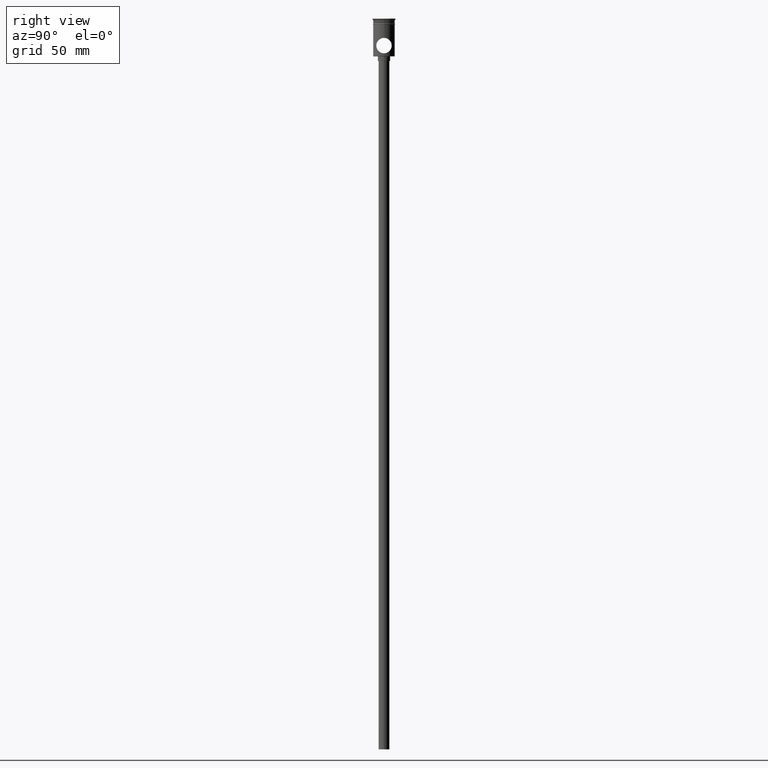
[diagram: clean part render]
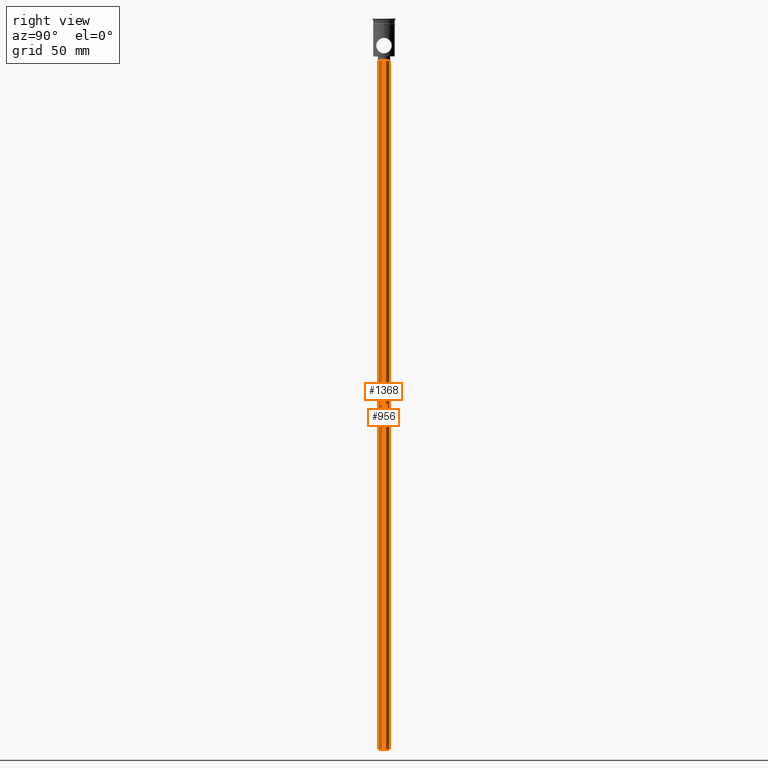
[diagram: same view with one multi-face feature highlighted, each face labeled with its STEP entity id]
A machine part, right view. The highlighted faces form ONE feature: a constant-radius fillet chain: 2 tangent blend faces with common blend radius 3.5 mm. The faces share edges in the B-rep.
Their STEP definitions:
[1] entity #956 (Cylinder):
#58 = CARTESIAN_POINT ( 'NONE',  ( 3.500000000000000444, 0.000000000000000000, -27.50000000000000000 ) ) ;
#132 = DIRECTION ( 'NONE',  ( -0.000000000000000000, -0.000000000000000000, 1.000000000000000000 ) ) ;
#158 = CIRCLE ( 'NONE', #185, 3.500000000000000444 ) ;
#185 = AXIS2_PLACEMENT_3D ( 'NONE', #574, #580, #470 ) ;
#257 = ORIENTED_EDGE ( 'NONE', *, *, #1234, .T. ) ;
#338 = VERTEX_POINT ( 'NONE', #1375 ) ;
#358 = CARTESIAN_POINT ( 'NONE',  ( 3.500000000000000444, 0.000000000000000000, -474.5000000000000568 ) ) ;
#398 = VECTOR ( 'NONE', #1424, 1000.000000000000000 ) ;
#431 = DIRECTION ( 'NONE',  ( -1.000000000000000000, 0.000000000000000000, 0.000000000000000000 ) ) ;
#453 = VERTEX_POINT ( 'NONE', #887 ) ;
#458 = CYLINDRICAL_SURFACE ( 'NONE', #1389, 3.500000000000000444 ) ;
#470 = DIRECTION ( 'NONE',  ( -1.000000000000000000, 0.000000000000000000, 0.000000000000000000 ) ) ;
#473 = DIRECTION ( 'NONE',  ( 1.000000000000000000, 0.000000000000000000, 0.000000000000000000 ) ) ;
#500 = CIRCLE ( 'NONE', #1087, 3.500000000000000444 ) ;
#502 = EDGE_CURVE ( 'NONE', #1165, #1396, #597, .T. ) ;
#574 = CARTESIAN_POINT ( 'NONE',  ( 0.000000000000000000, 0.000000000000000000, -27.50000000000000000 ) ) ;
#580 = DIRECTION ( 'NONE',  ( 0.000000000000000000, 0.000000000000000000, -1.000000000000000000 ) ) ;
#582 = CARTESIAN_POINT ( 'NONE',  ( 3.500000000000000444, 0.000000000000000000, -474.5000000000000568 ) ) ;
#597 = LINE ( 'NONE', #582, #398 ) ;
#678 = FACE_OUTER_BOUND ( 'NONE', #898, .T. ) ;
#697 = LINE ( 'NONE', #1164, #1177 ) ;
#887 = CARTESIAN_POINT ( 'NONE',  ( -3.500000000000000444, 4.286263797015737088E-16, -474.5000000000000568 ) ) ;
#898 = EDGE_LOOP ( 'NONE', ( #1173, #257, #1330, #981 ) ) ;
#956 = ADVANCED_FACE ( 'NONE', ( #678 ), #458, .T. ) ;
#981 = ORIENTED_EDGE ( 'NONE', *, *, #502, .F. ) ;
#1014 = CARTESIAN_POINT ( 'NONE',  ( 0.000000000000000000, 0.000000000000000000, -474.5000000000000568 ) ) ;
#1043 = CARTESIAN_POINT ( 'NONE',  ( 0.000000000000000000, 0.000000000000000000, -474.5000000000000568 ) ) ;
#1057 = DIRECTION ( 'NONE',  ( -0.000000000000000000, -0.000000000000000000, 1.000000000000000000 ) ) ;
#1087 = AXIS2_PLACEMENT_3D ( 'NONE', #1014, #1125, #431 ) ;
#1125 = DIRECTION ( 'NONE',  ( 0.000000000000000000, 0.000000000000000000, -1.000000000000000000 ) ) ;
#1135 = EDGE_CURVE ( 'NONE', #453, #1165, #500, .T. ) ;
#1164 = CARTESIAN_POINT ( 'NONE',  ( -3.500000000000000444, 4.286263797015737088E-16, -474.5000000000000568 ) ) ;
#1165 = VERTEX_POINT ( 'NONE', #358 ) ;
#1173 = ORIENTED_EDGE ( 'NONE', *, *, #1135, .F. ) ;
#1177 = VECTOR ( 'NONE', #132, 1000.000000000000000 ) ;
#1224 = EDGE_CURVE ( 'NONE', #338, #1396, #158, .T. ) ;
#1234 = EDGE_CURVE ( 'NONE', #453, #338, #697, .T. ) ;
#1330 = ORIENTED_EDGE ( 'NONE', *, *, #1224, .T. ) ;
#1375 = CARTESIAN_POINT ( 'NONE',  ( -3.500000000000000444, 4.286263797015737088E-16, -27.50000000000000000 ) ) ;
#1389 = AXIS2_PLACEMENT_3D ( 'NONE', #1043, #1057, #473 ) ;
#1396 = VERTEX_POINT ( 'NONE', #58 ) ;
#1424 = DIRECTION ( 'NONE',  ( -0.000000000000000000, -0.000000000000000000, 1.000000000000000000 ) ) ;
[2] entity #1368 (Cylinder):
#6 = EDGE_CURVE ( 'NONE', #1396, #338, #226, .T. ) ;
#58 = CARTESIAN_POINT ( 'NONE',  ( 3.500000000000000444, 0.000000000000000000, -27.50000000000000000 ) ) ;
#98 = AXIS2_PLACEMENT_3D ( 'NONE', #1227, #172, #275 ) ;
#132 = DIRECTION ( 'NONE',  ( -0.000000000000000000, -0.000000000000000000, 1.000000000000000000 ) ) ;
#172 = DIRECTION ( 'NONE',  ( -0.000000000000000000, -0.000000000000000000, 1.000000000000000000 ) ) ;
#226 = CIRCLE ( 'NONE', #1082, 3.500000000000000444 ) ;
#275 = DIRECTION ( 'NONE',  ( 1.000000000000000000, 0.000000000000000000, 0.000000000000000000 ) ) ;
#297 = DIRECTION ( 'NONE',  ( 0.000000000000000000, 0.000000000000000000, -1.000000000000000000 ) ) ;
#338 = VERTEX_POINT ( 'NONE', #1375 ) ;
#358 = CARTESIAN_POINT ( 'NONE',  ( 3.500000000000000444, 0.000000000000000000, -474.5000000000000568 ) ) ;
#398 = VECTOR ( 'NONE', #1424, 1000.000000000000000 ) ;
#399 = CARTESIAN_POINT ( 'NONE',  ( 0.000000000000000000, 0.000000000000000000, -474.5000000000000568 ) ) ;
#453 = VERTEX_POINT ( 'NONE', #887 ) ;
#502 = EDGE_CURVE ( 'NONE', #1165, #1396, #597, .T. ) ;
#518 = CYLINDRICAL_SURFACE ( 'NONE', #98, 3.500000000000000444 ) ;
#532 = CARTESIAN_POINT ( 'NONE',  ( 0.000000000000000000, 0.000000000000000000, -27.50000000000000000 ) ) ;
#554 = ORIENTED_EDGE ( 'NONE', *, *, #502, .T. ) ;
#582 = CARTESIAN_POINT ( 'NONE',  ( 3.500000000000000444, 0.000000000000000000, -474.5000000000000568 ) ) ;
#597 = LINE ( 'NONE', #582, #398 ) ;
#697 = LINE ( 'NONE', #1164, #1177 ) ;
#718 = CIRCLE ( 'NONE', #947, 3.500000000000000444 ) ;
#735 = ORIENTED_EDGE ( 'NONE', *, *, #6, .T. ) ;
#845 = ORIENTED_EDGE ( 'NONE', *, *, #1234, .F. ) ;
#866 = DIRECTION ( 'NONE',  ( -1.000000000000000000, 0.000000000000000000, 0.000000000000000000 ) ) ;
#887 = CARTESIAN_POINT ( 'NONE',  ( -3.500000000000000444, 4.286263797015737088E-16, -474.5000000000000568 ) ) ;
#889 = DIRECTION ( 'NONE',  ( -1.000000000000000000, 0.000000000000000000, 0.000000000000000000 ) ) ;
#947 = AXIS2_PLACEMENT_3D ( 'NONE', #399, #297, #866 ) ;
#1082 = AXIS2_PLACEMENT_3D ( 'NONE', #532, #1215, #889 ) ;
#1164 = CARTESIAN_POINT ( 'NONE',  ( -3.500000000000000444, 4.286263797015737088E-16, -474.5000000000000568 ) ) ;
#1165 = VERTEX_POINT ( 'NONE', #358 ) ;
#1177 = VECTOR ( 'NONE', #132, 1000.000000000000000 ) ;
#1214 = FACE_OUTER_BOUND ( 'NONE', #1412, .T. ) ;
#1215 = DIRECTION ( 'NONE',  ( 0.000000000000000000, 0.000000000000000000, -1.000000000000000000 ) ) ;
#1227 = CARTESIAN_POINT ( 'NONE',  ( 0.000000000000000000, 0.000000000000000000, -474.5000000000000568 ) ) ;
#1234 = EDGE_CURVE ( 'NONE', #453, #338, #697, .T. ) ;
#1329 = EDGE_CURVE ( 'NONE', #1165, #453, #718, .T. ) ;
#1341 = ORIENTED_EDGE ( 'NONE', *, *, #1329, .F. ) ;
#1368 = ADVANCED_FACE ( 'NONE', ( #1214 ), #518, .T. ) ;
#1375 = CARTESIAN_POINT ( 'NONE',  ( -3.500000000000000444, 4.286263797015737088E-16, -27.50000000000000000 ) ) ;
#1396 = VERTEX_POINT ( 'NONE', #58 ) ;
#1412 = EDGE_LOOP ( 'NONE', ( #845, #1341, #554, #735 ) ) ;
#1424 = DIRECTION ( 'NONE',  ( -0.000000000000000000, -0.000000000000000000, 1.000000000000000000 ) ) ;